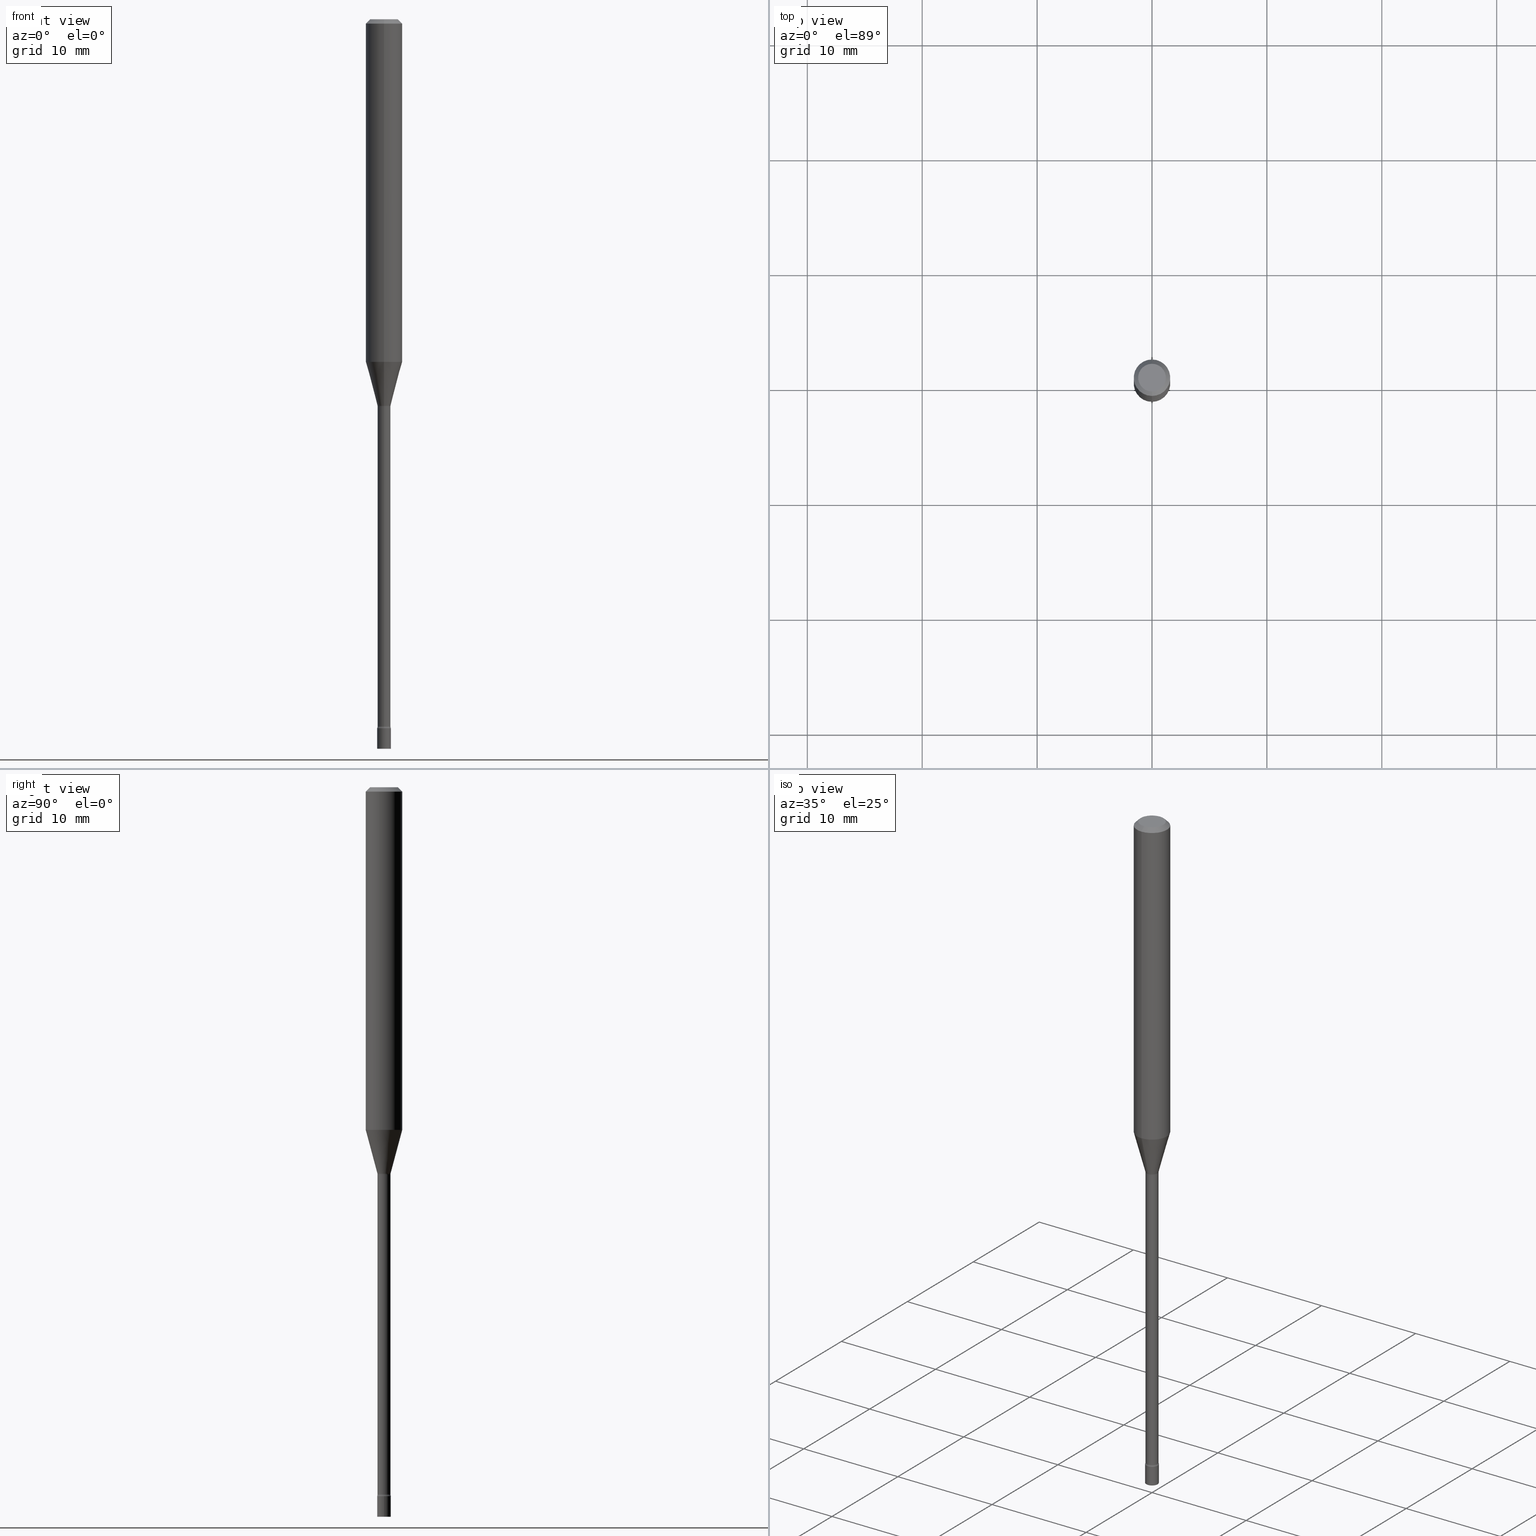
[diagram: canonical four-view strip — front | top / right | iso, engineering-drawing reading convention]
A machine part, canonical four-view strip (front | top / right | iso — engineering-drawing reading convention). The complete STEP part file that produces these views, byte-faithful:
ISO-10303-21;
HEADER;
FILE_DESCRIPTION (( 'STEP AP203' ),
    '1' );
FILE_NAME ('03679.STEP',
    '2024-03-08T22:33:36',
    ( '' ),
    ( '' ),
    'SwSTEP 2.0',
    'SolidWorks 2023',
    '' );
FILE_SCHEMA (( 'CONFIG_CONTROL_DESIGN' ));
ENDSEC;

DATA;
#1 = DIRECTION ( 'NONE',  ( -2.445482045406543342E-29, 3.491462379524561524E-15, 1.000000000000000000 ) ) ;
#2 = AXIS2_PLACEMENT_3D ( 'NONE', #155, #34, #341 ) ;
#3 = ORIENTED_EDGE ( 'NONE', *, *, #469, .F. ) ;
#4 = DIRECTION ( 'NONE',  ( -1.000000000000000000, 6.982962677686265922E-15, -4.883557194083112340E-29 ) ) ;
#5 = ORIENTED_EDGE ( 'NONE', *, *, #184, .T. ) ;
#6 = DIRECTION ( 'NONE',  ( -2.445482045406543342E-29, 3.491462379524561524E-15, 1.000000000000000000 ) ) ;
#7 = ORIENTED_EDGE ( 'NONE', *, *, #491, .T. ) ;
#8 = CARTESIAN_POINT ( 'NONE',  ( 5.924601570450546982E-29, -8.458669134682363583E-15, -2.422672283192177645 ) ) ;
#9 = CARTESIAN_POINT ( 'NONE',  ( 5.940043730223697314E-29, -8.480808172050001970E-15, -2.429000000000000270 ) ) ;
#10 = DIRECTION ( 'NONE',  ( -6.982962677686266711E-15, -1.000000000000000000, 0.000000000000000000 ) ) ;
#11 = EDGE_CURVE ( 'NONE', #156, #80, #402, .T. ) ;
#12 = DIRECTION ( 'NONE',  ( -2.445468806185136597E-29, 3.491481338843145583E-15, 1.000000000000000000 ) ) ;
#13 = ORIENTED_EDGE ( 'NONE', *, *, #387, .F. ) ;
#14 = ADVANCED_FACE ( 'NONE', ( #119 ), #288, .F. ) ;
#15 = COORDINATED_UNIVERSAL_TIME_OFFSET ( 5, 0, .BEHIND. ) ;
#16 = ADVANCED_FACE ( 'NONE', ( #42 ), #135, .F. ) ;
#17 = AXIS2_PLACEMENT_3D ( 'NONE', #312, #116, #88 ) ;
#18 = CIRCLE ( 'NONE', #136, 0.06250000000000000000 ) ;
#19 = COORDINATED_UNIVERSAL_TIME_OFFSET ( 5, 0, .BEHIND. ) ;
#20 = DIRECTION ( 'NONE',  ( 1.839019923739597554E-15, 0.2588190451025245697, 0.9659258262890670910 ) ) ;
#21 = EDGE_CURVE ( 'NONE', #337, #266, #84, .T. ) ;
#22 = DATE_AND_TIME ( #414, #408 ) ;
#23 = DIRECTION ( 'NONE',  ( -6.982962677686265922E-15, -1.000000000000000000, 3.491462379524561524E-15 ) ) ;
#24 = PERSON_AND_ORGANIZATION ( #278, #36 ) ;
#25 = PLANE ( 'NONE',  #261 ) ;
#26 = VERTEX_POINT ( 'NONE', #280 ) ;
#27 = AXIS2_PLACEMENT_3D ( 'NONE', #399, #394, #199 ) ;
#28 = AXIS2_PLACEMENT_3D ( 'NONE', #386, #432, #388 ) ;
#29 = ORIENTED_EDGE ( 'NONE', *, *, #207, .F. ) ;
#30 = CARTESIAN_POINT ( 'NONE',  ( -4.364351673553916201E-16, -0.06250000000000000000, 2.182163987202850953E-16 ) ) ;
#31 = ORIENTED_EDGE ( 'NONE', *, *, #217, .F. ) ;
#32 = DIRECTION ( 'NONE',  ( -1.000000000000000000, 6.982962677686265922E-15, -4.883557194083112340E-29 ) ) ;
#33 = ORIENTED_EDGE ( 'NONE', *, *, #451, .F. ) ;
#34 = DIRECTION ( 'NONE',  ( 2.445482045406543342E-29, -3.491462379524561524E-15, -1.000000000000000000 ) ) ;
#35 = DIRECTION ( 'NONE',  ( 6.982962677686265922E-15, 1.000000000000000000, -3.491462379524561524E-15 ) ) ;
#36 = ORGANIZATION ( 'UNSPECIFIED', 'UNSPECIFIED', '' ) ;
#37 = ORIENTED_EDGE ( 'NONE', *, *, #241, .F. ) ;
#38 = ORIENTED_EDGE ( 'NONE', *, *, #201, .T. ) ;
#39 = DIRECTION ( 'NONE',  ( 2.445482045406543061E-29, -3.491462379524561524E-15, -1.000000000000000000 ) ) ;
#40 = DIRECTION ( 'NONE',  ( -2.445468806185136597E-29, 3.491481338843145583E-15, 1.000000000000000000 ) ) ;
#41 = CARTESIAN_POINT ( 'NONE',  ( 0.02350000000000000352, -8.892802970033491011E-15, -2.500000000000000000 ) ) ;
#42 = FACE_OUTER_BOUND ( 'NONE', #50, .T. ) ;
#43 = CARTESIAN_POINT ( 'NONE',  ( 2.871546515168501925E-29, -4.099762927148765252E-15, -1.174225147374217793 ) ) ;
#44 = CIRCLE ( 'NONE', #327, 0.01500000000000003240 ) ;
#45 = DIRECTION ( 'NONE',  ( -2.445482045406543342E-29, 3.491462379524561524E-15, 1.000000000000000000 ) ) ;
#46 = FACE_OUTER_BOUND ( 'NONE', #472, .T. ) ;
#47 = EDGE_CURVE ( 'NONE', #72, #350, #423, .T. ) ;
#48 = DIRECTION ( 'NONE',  ( -6.982962677686265922E-15, -1.000000000000000000, 0.000000000000000000 ) ) ;
#49 = CARTESIAN_POINT ( 'NONE',  ( 7.071065235856426937E-46, -1.009549765475887125E-31, -2.891481149550176045E-17 ) ) ;
#50 = EDGE_LOOP ( 'NONE', ( #210, #484, #426, #269 ) ) ;
#51 = DIRECTION ( 'NONE',  ( 1.000000000000000000, 0.000000000000000000, 0.000000000000000000 ) ) ;
#52 = AXIS2_PLACEMENT_3D ( 'NONE', #43, #168, #317 ) ;
#53 = DIRECTION ( 'NONE',  ( 4.937700262164548042E-15, 0.7071067811865451302, -0.7071067811865499042 ) ) ;
#54 = COORDINATED_UNIVERSAL_TIME_OFFSET ( 5, 0, .BEHIND. ) ;
#55 = CARTESIAN_POINT ( 'NONE',  ( 0.000000000000000000, 0.000000000000000000, 0.000000000000000000 ) ) ;
#56 = AXIS2_PLACEMENT_3D ( 'NONE', #115, #71, #304 ) ;
#57 = CC_DESIGN_APPROVAL ( #398, ( #159 ) ) ;
#58 = SHAPE_DEFINITION_REPRESENTATION ( #404, #342 ) ;
#59 = CARTESIAN_POINT ( 'NONE',  ( 3.840629472727447874E-16, 0.04749999999999999362, -1.947592745229184119E-16 ) ) ;
#60 = APPROVAL_DATE_TIME ( #328, #488 ) ;
#61 = FACE_OUTER_BOUND ( 'NONE', #86, .T. ) ;
#62 = EDGE_CURVE ( 'NONE', #520, #396, #345, .T. ) ;
#63 = ORIENTED_EDGE ( 'NONE', *, *, #47, .F. ) ;
#64 = CARTESIAN_POINT ( 'NONE',  ( 1.606616180941141096E-16, 0.02261111260565936906, -1.323092501787273223 ) ) ;
#65 = AXIS2_PLACEMENT_3D ( 'NONE', #355, #362, #48 ) ;
#66 = AXIS2_PLACEMENT_3D ( 'NONE', #8, #163, #10 ) ;
#67 = APPROVAL ( #377, 'UNSPECIFIED' ) ;
#68 = ORIENTED_EDGE ( 'NONE', *, *, #201, .F. ) ;
#69 = LINE ( 'NONE', #30, #203 ) ;
#70 = EDGE_LOOP ( 'NONE', ( #516, #133, #470, #124 ) ) ;
#71 = DIRECTION ( 'NONE',  ( 1.000000000000000000, -7.105427357601001070E-15, 4.926315276357394490E-29 ) ) ;
#72 = VERTEX_POINT ( 'NONE', #166 ) ;
#73 = DIRECTION ( 'NONE',  ( 6.982962677686265922E-15, 1.000000000000000000, -3.483106191921935554E-15 ) ) ;
#74 = CC_DESIGN_PERSON_AND_ORGANIZATION_ASSIGNMENT ( #24, #139, ( #232 ) ) ;
#75 = VERTEX_POINT ( 'NONE', #319 ) ;
#76 = CONICAL_SURFACE ( 'NONE', #252, 0.06250000000000000000, 0.7853981633974483900 ) ;
#77 = CARTESIAN_POINT ( 'NONE',  ( 3.235598957532801493E-29, -4.619527694621298613E-15, -1.323092501787273223 ) ) ;
#78 = ORIENTED_EDGE ( 'NONE', *, *, #448, .F. ) ;
#79 = CARTESIAN_POINT ( 'NONE',  ( 0.000000000000000000, 0.000000000000000000, 0.000000000000000000 ) ) ;
#80 = VERTEX_POINT ( 'NONE', #435 ) ;
#81 = DIRECTION ( 'NONE',  ( -6.982962677686265922E-15, -1.000000000000000000, 0.000000000000000000 ) ) ;
#82 = CARTESIAN_POINT ( 'NONE',  ( 2.871546515168501925E-29, -4.099762927148765252E-15, -1.174225147374217793 ) ) ;
#83 = DIRECTION ( 'NONE',  ( -6.982962677686265922E-15, -1.000000000000000000, 3.491462379524561524E-15 ) ) ;
#84 = CIRCLE ( 'NONE', #209, 0.06250000000000000000 ) ;
#85 = AXIS2_PLACEMENT_3D ( 'NONE', #438, #395, #349 ) ;
#86 = EDGE_LOOP ( 'NONE', ( #78, #63 ) ) ;
#87 = CYLINDRICAL_SURFACE ( 'NONE', #400, 0.02210000000000005710 ) ;
#88 = DIRECTION ( 'NONE',  ( -6.982962677686265922E-15, -1.000000000000000000, 3.491462379524561524E-15 ) ) ;
#89 = CARTESIAN_POINT ( 'NONE',  ( 0.02350000000000000352, -8.644907794975628038E-15, -2.429000000000000270 ) ) ;
#90 = AXIS2_PLACEMENT_3D ( 'NONE', #457, #417, #479 ) ;
#91 = CC_DESIGN_APPROVAL ( #488, ( #232 ) ) ;
#92 = ORIENTED_EDGE ( 'NONE', *, *, #138, .T. ) ;
#93 =( LENGTH_UNIT ( ) NAMED_UNIT ( * ) SI_UNIT ( $, .METRE. ) );
#94 = DIRECTION ( 'NONE',  ( -6.982962677686265922E-15, -1.000000000000000000, 3.491462379524561524E-15 ) ) ;
#95 = CALENDAR_DATE ( 2024, 8, 3 ) ;
#96 = DIRECTION ( 'NONE',  ( -2.445482045406543342E-29, 3.491462379524561524E-15, 1.000000000000000000 ) ) ;
#97 = CIRCLE ( 'NONE', #333, 0.02350000000000000352 ) ;
#98 = AXIS2_PLACEMENT_3D ( 'NONE', #112, #39, #35 ) ;
#99 = ORIENTED_EDGE ( 'NONE', *, *, #21, .F. ) ;
#100 = DATE_AND_TIME ( #504, #372 ) ;
#101 = DIRECTION ( 'NONE',  ( -2.445482045406543061E-29, 3.491462379524561524E-15, 1.000000000000000000 ) ) ;
#102 = ADVANCED_FACE ( 'NONE', ( #162 ), #234, .T. ) ;
#103 = DIRECTION ( 'NONE',  ( -2.445482045406543342E-29, 3.491462379524561524E-15, 1.000000000000000000 ) ) ;
#104 = EDGE_LOOP ( 'NONE', ( #462, #229, #514, #117 ) ) ;
#105 = EDGE_LOOP ( 'NONE', ( #478, #430, #466, #444 ) ) ;
#106 = LINE ( 'NONE', #214, #230 ) ;
#107 = VECTOR ( 'NONE', #249, 39.37007874015748143 ) ;
#108 = AXIS2_PLACEMENT_3D ( 'NONE', #77, #471, #511 ) ;
#109 = EDGE_LOOP ( 'NONE', ( #482, #259, #299, #153 ) ) ;
#110 = CARTESIAN_POINT ( 'NONE',  ( -1.640996229255679887E-16, -0.02350000000000849673, -2.429000000000000270 ) ) ;
#111 = ORIENTED_EDGE ( 'NONE', *, *, #138, .F. ) ;
#112 = CARTESIAN_POINT ( 'NONE',  ( 3.316907271900976096E-16, 0.04749999999999999362, -1.803018687751675471E-16 ) ) ;
#113 = EDGE_CURVE ( 'NONE', #148, #431, #305, .T. ) ;
#114 = VERTEX_POINT ( 'NONE', #359 ) ;
#115 = CARTESIAN_POINT ( 'NONE',  ( 2.636113549670573269E-16, 0.03709999999999167436, -2.422672283192177645 ) ) ;
#116 = DIRECTION ( 'NONE',  ( -2.445482045406543342E-29, 3.491462379524561524E-15, 1.000000000000000000 ) ) ;
#117 = ORIENTED_EDGE ( 'NONE', *, *, #519, .F. ) ;
#118 = CARTESIAN_POINT ( 'NONE',  ( 3.235598957532801493E-29, -4.619527694621298613E-15, -1.323092501787273223 ) ) ;
#119 = FACE_OUTER_BOUND ( 'NONE', #104, .T. ) ;
#120 = FACE_OUTER_BOUND ( 'NONE', #208, .T. ) ;
#121 = DIRECTION ( 'NONE',  ( -6.982962677686266711E-15, -1.000000000000000000, 0.000000000000000000 ) ) ;
#122 = EDGE_CURVE ( 'NONE', #507, #156, #476, .T. ) ;
#123 =( CONVERSION_BASED_UNIT ( 'INCH', #245 ) LENGTH_UNIT ( ) NAMED_UNIT ( #450 ) );
#124 = ORIENTED_EDGE ( 'NONE', *, *, #258, .F. ) ;
#125 = LINE ( 'NONE', #403, #336 ) ;
#126 = ADVANCED_FACE ( 'NONE', ( #164 ), #320, .F. ) ;
#127 = AXIS2_PLACEMENT_3D ( 'NONE', #276, #316, #439 ) ;
#128 = AXIS2_PLACEMENT_3D ( 'NONE', #118, #160, #81 ) ;
#129 = EDGE_LOOP ( 'NONE', ( #272, #225 ) ) ;
#130 = DIRECTION ( 'NONE',  ( -6.982962677686266711E-15, -1.000000000000000000, 3.491462379524561524E-15 ) ) ;
#131 = DIRECTION ( 'NONE',  ( -2.445468806185136597E-29, 3.491481338843145583E-15, 1.000000000000000000 ) ) ;
#132 = PERSON_AND_ORGANIZATION ( #278, #36 ) ;
#133 = ORIENTED_EDGE ( 'NONE', *, *, #429, .T. ) ;
#134 = CARTESIAN_POINT ( 'NONE',  ( 3.023754139721028336E-16, 0.02261111260565936906, -1.323092501787273223 ) ) ;
#135 = TOROIDAL_SURFACE ( 'NONE', #458, 0.03710000000000000103, 0.01500000000000002373 ) ;
#136 = AXIS2_PLACEMENT_3D ( 'NONE', #243, #361, #481 ) ;
#137 = DATE_AND_TIME ( #176, #172 ) ;
#138 = EDGE_CURVE ( 'NONE', #493, #337, #257, .T. ) ;
#139 = PERSON_AND_ORGANIZATION_ROLE ( 'creator' ) ;
#140 = ORIENTED_EDGE ( 'NONE', *, *, #440, .F. ) ;
#141 = DIRECTION ( 'NONE',  ( -2.445482045406543342E-29, 3.491462379524561524E-15, 1.000000000000000000 ) ) ;
#142 = CYLINDRICAL_SURFACE ( 'NONE', #150, 0.06250000000000000000 ) ;
#143 = CIRCLE ( 'NONE', #505, 0.02350000000000000352 ) ;
#144 = FACE_OUTER_BOUND ( 'NONE', #254, .T. ) ;
#145 = ADVANCED_FACE ( 'NONE', ( #329 ), #378, .T. ) ;
#146 = FACE_OUTER_BOUND ( 'NONE', #463, .T. ) ;
#147 = ORIENTED_EDGE ( 'NONE', *, *, #519, .T. ) ;
#148 = VERTEX_POINT ( 'NONE', #59 ) ;
#149 = FACE_OUTER_BOUND ( 'NONE', #310, .T. ) ;
#150 = AXIS2_PLACEMENT_3D ( 'NONE', #222, #96, #219 ) ;
#151 = EDGE_CURVE ( 'NONE', #75, #80, #193, .T. ) ;
#152 = CC_DESIGN_APPROVAL ( #67, ( #251 ) ) ;
#153 = ORIENTED_EDGE ( 'NONE', *, *, #184, .F. ) ;
#154 = CARTESIAN_POINT ( 'NONE',  ( -3.773273898774340269E-16, -0.04749999999999999362, 1.369296515319149033E-16 ) ) ;
#155 = CARTESIAN_POINT ( 'NONE',  ( 3.668223068109822037E-31, -5.237193569286852393E-17, -0.01500000000000003067 ) ) ;
#156 = VERTEX_POINT ( 'NONE', #494 ) ;
#157 = PLANE ( 'NONE',  #98 ) ;
#158 = DIRECTION ( 'NONE',  ( -2.445482045406543342E-29, 3.491462379524561524E-15, 1.000000000000000000 ) ) ;
#159 = SECURITY_CLASSIFICATION ( '', '', #183 ) ;
#160 = DIRECTION ( 'NONE',  ( -2.445482045406543342E-29, 3.491462379524561524E-15, 1.000000000000000000 ) ) ;
#161 = CC_DESIGN_PERSON_AND_ORGANIZATION_ASSIGNMENT ( #411, #419, ( #251 ) ) ;
#162 = FACE_OUTER_BOUND ( 'NONE', #383, .T. ) ;
#163 = DIRECTION ( 'NONE',  ( -2.445482045406543342E-29, 3.491462379524561524E-15, 1.000000000000000000 ) ) ;
#164 = FACE_OUTER_BOUND ( 'NONE', #70, .T. ) ;
#165 = DIRECTION ( 'NONE',  ( 0.000000000000000000, 0.000000000000000000, 1.000000000000000000 ) ) ;
#166 = CARTESIAN_POINT ( 'NONE',  ( 1.669775429036830291E-16, 0.02349999999999153460, -2.429000000000000270 ) ) ;
#167 = ADVANCED_FACE ( 'NONE', ( #61 ), #25, .F. ) ;
#168 = DIRECTION ( 'NONE',  ( -2.445482045406543342E-29, 3.491462379524561524E-15, 1.000000000000000000 ) ) ;
#169 = AXIS2_PLACEMENT_3D ( 'NONE', #301, #331, #94 ) ;
#170 = AXIS2_PLACEMENT_3D ( 'NONE', #267, #344, #354 ) ;
#171 = CIRCLE ( 'NONE', #85, 0.02210000000000000506 ) ;
#172 = LOCAL_TIME ( 17, 33, 36.00000000000000000, #15 ) ;
#173 = EDGE_LOOP ( 'NONE', ( #111, #218, #442, #99 ) ) ;
#174 = CARTESIAN_POINT ( 'NONE',  ( -2.590679153421021709E-16, -0.03710000000000859832, -2.422672283192177645 ) ) ;
#175 = DIRECTION ( 'NONE',  ( 1.000000000000000000, -6.982962677686269866E-15, 0.000000000000000000 ) ) ;
#176 = CALENDAR_DATE ( 2024, 8, 3 ) ;
#177 = LOCAL_TIME ( 17, 33, 36.00000000000000000, #19 ) ;
#178 = DATE_AND_TIME ( #220, #177 ) ;
#179 = ORIENTED_EDGE ( 'NONE', *, *, #418, .T. ) ;
#180 = LINE ( 'NONE', #295, #370 ) ;
#181 = COORDINATED_UNIVERSAL_TIME_OFFSET ( 5, 0, .BEHIND. ) ;
#182 = APPLICATION_CONTEXT ( 'configuration controlled 3d designs of mechanical parts and assemblies' ) ;
#183 = SECURITY_CLASSIFICATION_LEVEL ( 'unclassified' ) ;
#184 = EDGE_CURVE ( 'NONE', #266, #114, #69, .T. ) ;
#185 = DIRECTION ( 'NONE',  ( -2.445468806185136877E-29, 3.491481338843145188E-15, 1.000000000000000000 ) ) ;
#186 = VECTOR ( 'NONE', #103, 39.37007874015748143 ) ;
#187 = VECTOR ( 'NONE', #473, 39.37007874015748143 ) ;
#188 = DIRECTION ( 'NONE',  ( 1.000000000000000000, -6.982962677686228056E-15, 0.000000000000000000 ) ) ;
#189 = CARTESIAN_POINT ( 'NONE',  ( -1.578925554262807327E-16, -0.02261111260566860820, -1.323092501787273223 ) ) ;
#190 = PLANE ( 'NONE',  #170 ) ;
#191 = ORIENTED_EDGE ( 'NONE', *, *, #231, .T. ) ;
#192 = CC_DESIGN_DATE_AND_TIME_ASSIGNMENT ( #100, #496, ( #159 ) ) ;
#193 = CIRCLE ( 'NONE', #273, 0.02210000000000000506 ) ;
#194 = CONICAL_SURFACE ( 'NONE', #382, 0.02261111260566398690, 0.2617993877991499074 ) ;
#195 = ORIENTED_EDGE ( 'NONE', *, *, #21, .T. ) ;
#196 = DIRECTION ( 'NONE',  ( -2.445482045406543342E-29, 3.491462379524561524E-15, 1.000000000000000000 ) ) ;
#197 = EDGE_CURVE ( 'NONE', #385, #266, #413, .T. ) ;
#198 = CARTESIAN_POINT ( 'NONE',  ( 3.235598957532801493E-29, -4.619527694621298613E-15, -1.323092501787273223 ) ) ;
#199 = DIRECTION ( 'NONE',  ( -1.000000000000000000, 6.982962677686265922E-15, -4.876176775795935793E-29 ) ) ;
#200 = FACE_OUTER_BOUND ( 'NONE', #105, .T. ) ;
#201 = EDGE_CURVE ( 'NONE', #405, #396, #180, .T. ) ;
#202 = DIRECTION ( 'NONE',  ( -6.982962677686265922E-15, -1.000000000000000000, 4.370956789862821150E-15 ) ) ;
#203 = VECTOR ( 'NONE', #499, 39.37007874015748143 ) ;
#204 = DIRECTION ( 'NONE',  ( -6.982962677686265133E-15, -1.000000000000000000, 0.000000000000000000 ) ) ;
#205 = ORIENTED_EDGE ( 'NONE', *, *, #465, .F. ) ;
#206 = CARTESIAN_POINT ( 'NONE',  ( -1.543234751768668812E-16, -0.02210000000000005710, 7.716131858749301636E-17 ) ) ;
#207 = EDGE_CURVE ( 'NONE', #337, #26, #334, .T. ) ;
#208 = EDGE_LOOP ( 'NONE', ( #517, #244 ) ) ;
#209 = AXIS2_PLACEMENT_3D ( 'NONE', #82, #242, #202 ) ;
#210 = ORIENTED_EDGE ( 'NONE', *, *, #429, .F. ) ;
#211 = PERSON_AND_ORGANIZATION ( #278, #36 ) ;
#212 = PERSON_AND_ORGANIZATION ( #278, #36 ) ;
#213 = PERSON_AND_ORGANIZATION ( #278, #36 ) ;
#214 = CARTESIAN_POINT ( 'NONE',  ( 1.570299446029825221E-16, 0.02210000000000005710, -7.716131858749301636E-17 ) ) ;
#215 = VECTOR ( 'NONE', #20, 39.37007874015748854 ) ;
#216 = LOCAL_TIME ( 17, 33, 36.00000000000000000, #181 ) ;
#217 = EDGE_CURVE ( 'NONE', #368, #520, #486, .T. ) ;
#218 = ORIENTED_EDGE ( 'NONE', *, *, #401, .T. ) ;
#219 = DIRECTION ( 'NONE',  ( -6.982962677686265922E-15, -1.000000000000000000, 3.491462379524561524E-15 ) ) ;
#220 = CALENDAR_DATE ( 2024, 8, 3 ) ;
#221 = CARTESIAN_POINT ( 'NONE',  ( 3.245075449336902148E-29, -4.633107707545245986E-15, -1.326974787463811145 ) ) ;
#222 = CARTESIAN_POINT ( 'NONE',  ( 0.000000000000000000, 0.000000000000000000, 0.000000000000000000 ) ) ;
#223 = AXIS2_PLACEMENT_3D ( 'NONE', #221, #508, #460 ) ;
#224 = DIRECTION ( 'NONE',  ( 1.000000000000000000, -6.982962677686265922E-15, 4.876176775795935793E-29 ) ) ;
#225 = ORIENTED_EDGE ( 'NONE', *, *, #465, .T. ) ;
#226 = FACE_OUTER_BOUND ( 'NONE', #129, .T. ) ;
#227 = ADVANCED_FACE ( 'NONE', ( #454 ), #142, .T. ) ;
#228 = CARTESIAN_POINT ( 'NONE',  ( 0.000000000000000000, 0.000000000000000000, 0.000000000000000000 ) ) ;
#229 = ORIENTED_EDGE ( 'NONE', *, *, #387, .T. ) ;
#230 = VECTOR ( 'NONE', #141, 39.37007874015748143 ) ;
#231 = EDGE_CURVE ( 'NONE', #405, #368, #97, .T. ) ;
#232 = PRODUCT_DEFINITION_FORMATION_WITH_SPECIFIED_SOURCE ( 'ANY', '', #433, .NOT_KNOWN. ) ;
#233 = DIRECTION ( 'NONE',  ( -6.982962677686265922E-15, -1.000000000000000000, 3.491462379524561919E-15 ) ) ;
#234 = PLANE ( 'NONE',  #27 ) ;
#235 = ADVANCED_FACE ( 'NONE', ( #144 ), #389, .F. ) ;
#236 = DIRECTION ( 'NONE',  ( 2.445482045406543342E-29, -3.491462379524561524E-15, -1.000000000000000000 ) ) ;
#237 = CARTESIAN_POINT ( 'NONE',  ( 5.924601570450546982E-29, -8.458669134682363583E-15, -2.422672283192177645 ) ) ;
#238 = FACE_OUTER_BOUND ( 'NONE', #173, .T. ) ;
#239 = DIRECTION ( 'NONE',  ( 1.000000000000000000, -6.982962677686269866E-15, 0.000000000000000000 ) ) ;
#240 = AXIS2_PLACEMENT_3D ( 'NONE', #367, #12, #175 ) ;
#241 = EDGE_CURVE ( 'NONE', #507, #75, #106, .T. ) ;
#242 = DIRECTION ( 'NONE',  ( -2.445482045406543342E-29, 3.491462379524561524E-15, 1.000000000000000000 ) ) ;
#243 = CARTESIAN_POINT ( 'NONE',  ( 3.668223068109822037E-31, -5.237193569286852393E-17, -0.01500000000000003067 ) ) ;
#244 = ORIENTED_EDGE ( 'NONE', *, *, #451, .T. ) ;
#245 = LENGTH_MEASURE_WITH_UNIT ( LENGTH_MEASURE( 0.02539999999999999897 ), #93 );
#246 = AXIS2_PLACEMENT_3D ( 'NONE', #376, #32, #371 ) ;
#247 = ADVANCED_FACE ( 'NONE', ( #146 ), #464, .T. ) ;
#248 = ORIENTED_EDGE ( 'NONE', *, *, #62, .F. ) ;
#249 = DIRECTION ( 'NONE',  ( -2.445468806185136877E-29, 3.491481338843145188E-15, 1.000000000000000000 ) ) ;
#250 = PERSON_AND_ORGANIZATION_ROLE ( 'design_supplier' ) ;
#251 = PRODUCT_DEFINITION ( 'UNKNOWN', '', #232, #501 ) ;
#252 = AXIS2_PLACEMENT_3D ( 'NONE', #441, #236, #73 ) ;
#253 = UNCERTAINTY_MEASURE_WITH_UNIT (LENGTH_MEASURE( 1.000000000000000082E-05 ), #123, 'distance_accuracy_value', 'NONE');
#254 = EDGE_LOOP ( 'NONE', ( #13, #140, #147, #380 ) ) ;
#255 = APPROVAL_ROLE ( '' ) ;
#256 = DIRECTION ( 'NONE',  ( -6.982962677686265922E-15, -1.000000000000000000, 0.000000000000000000 ) ) ;
#257 = LINE ( 'NONE', #64, #215 ) ;
#258 = EDGE_CURVE ( 'NONE', #385, #80, #407, .T. ) ;
#259 = ORIENTED_EDGE ( 'NONE', *, *, #207, .T. ) ;
#260 = DIRECTION ( 'NONE',  ( -2.445468806185136597E-29, 3.491481338843145583E-15, 1.000000000000000000 ) ) ;
#261 = AXIS2_PLACEMENT_3D ( 'NONE', #338, #101, #23 ) ;
#262 = CIRCLE ( 'NONE', #28, 0.02261111260566398690 ) ;
#263 = CC_DESIGN_PERSON_AND_ORGANIZATION_ASSIGNMENT ( #490, #330, ( #159 ) ) ;
#264 = ORIENTED_EDGE ( 'NONE', *, *, #122, .T. ) ;
#265 = CARTESIAN_POINT ( 'NONE',  ( -4.287811248607203282E-16, -0.06250000000000005551, -0.01499999999999981209 ) ) ;
#266 = VERTEX_POINT ( 'NONE', #293 ) ;
#267 = CARTESIAN_POINT ( 'NONE',  ( 5.940043730223697314E-29, -8.480808172050001970E-15, -2.429000000000000270 ) ) ;
#268 = ORIENTED_EDGE ( 'NONE', *, *, #298, .T. ) ;
#269 = ORIENTED_EDGE ( 'NONE', *, *, #335, .T. ) ;
#270 = CARTESIAN_POINT ( 'NONE',  ( -0.02350000000000000352, -8.437778216675308581E-15, -2.429000000000000270 ) ) ;
#271 = CC_DESIGN_DATE_AND_TIME_ASSIGNMENT ( #22, #332, ( #251 ) ) ;
#272 = ORIENTED_EDGE ( 'NONE', *, *, #62, .T. ) ;
#273 = AXIS2_PLACEMENT_3D ( 'NONE', #424, #421, #256 ) ;
#274 = CIRCLE ( 'NONE', #52, 0.06250000000000000000 ) ;
#275 = DIRECTION ( 'NONE',  ( 1.000000000000000000, -7.105427357601001070E-15, 4.926315276357394490E-29 ) ) ;
#276 = CARTESIAN_POINT ( 'NONE',  ( 7.071065235856426937E-46, -1.009549765475887125E-31, -2.891481149550176045E-17 ) ) ;
#277 = FACE_OUTER_BOUND ( 'NONE', #456, .T. ) ;
#278 = PERSON ( 'UNSPECIFIED', 'UNSPECIFIED', 'UNSPECIFIED', ('UNSPECIFIED'), ('UNSPECIFIED'), ('UNSPECIFIED') ) ;
#279 = DIRECTION ( 'NONE',  ( -6.982962677686265922E-15, -1.000000000000000000, 3.491462379524561524E-15 ) ) ;
#280 = CARTESIAN_POINT ( 'NONE',  ( 4.440892098500914096E-16, 0.06249999999999995143, -0.01500000000000024751 ) ) ;
#281 = AXIS2_PLACEMENT_3D ( 'NONE', #49, #366, #130 ) ;
#282 = EDGE_CURVE ( 'NONE', #368, #405, #313, .T. ) ;
#283 = ORIENTED_EDGE ( 'NONE', *, *, #282, .T. ) ;
#284 =( NAMED_UNIT ( * ) SI_UNIT ( $, .STERADIAN. ) SOLID_ANGLE_UNIT ( ) );
#285 = ADVANCED_FACE ( 'NONE', ( #475 ), #477, .T. ) ;
#286 = PERSON_AND_ORGANIZATION_ROLE ( 'design_owner' ) ;
#287 = ADVANCED_FACE ( 'NONE', ( #149 ), #391, .T. ) ;
#288 = TOROIDAL_SURFACE ( 'NONE', #17, 0.03710000000000013287, 0.01500000000000002720 ) ;
#289 = AXIS2_PLACEMENT_3D ( 'NONE', #228, #308, #233 ) ;
#290 = APPROVAL_DATE_TIME ( #137, #398 ) ;
#291 = CARTESIAN_POINT ( 'NONE',  ( 0.000000000000000000, 0.000000000000000000, 0.000000000000000000 ) ) ;
#292 = APPROVAL_STATUS ( 'not_yet_approved' ) ;
#293 = CARTESIAN_POINT ( 'NONE',  ( -4.364351673553631225E-16, -0.06250000000000412170, -1.174225147374217570 ) ) ;
#294 = AXIS2_PLACEMENT_3D ( 'NONE', #291, #131, #224 ) ;
#295 = CARTESIAN_POINT ( 'NONE',  ( -0.02350000000000000352, 1.669775429036235687E-16, -1.155949746209903035E-30 ) ) ;
#296 = CIRCLE ( 'NONE', #416, 0.06250000000000000000 ) ;
#297 = DIRECTION ( 'NONE',  ( -1.807323732225327773E-15, -0.2588190451025178529, 0.9659258262890690894 ) ) ;
#298 = EDGE_CURVE ( 'NONE', #114, #26, #296, .T. ) ;
#299 = ORIENTED_EDGE ( 'NONE', *, *, #298, .F. ) ;
#300 = ORIENTED_EDGE ( 'NONE', *, *, #373, .F. ) ;
#301 = CARTESIAN_POINT ( 'NONE',  ( 5.924569496155794395E-29, -8.458715066898005273E-15, -2.422672283192177645 ) ) ;
#302 = CC_DESIGN_PERSON_AND_ORGANIZATION_ASSIGNMENT ( #132, #286, ( #433 ) ) ;
#303 = ORIENTED_EDGE ( 'NONE', *, *, #513, .F. ) ;
#304 = DIRECTION ( 'NONE',  ( 7.105427357600997914E-15, 1.000000000000000000, 0.000000000000000000 ) ) ;
#305 = CIRCLE ( 'NONE', #127, 0.04749999999999999362 ) ;
#306 = DIRECTION ( 'NONE',  ( -2.445482045406543342E-29, 3.491462379524561524E-15, 1.000000000000000000 ) ) ;
#307 = ORIENTED_EDGE ( 'NONE', *, *, #11, .T. ) ;
#308 = DIRECTION ( 'NONE',  ( -2.445482045406543342E-29, 3.491462379524561524E-15, 1.000000000000000000 ) ) ;
#309 = ADVANCED_FACE ( 'NONE', ( #120 ), #157, .F. ) ;
#310 = EDGE_LOOP ( 'NONE', ( #300, #340, #7, #360 ) ) ;
#311 = FACE_OUTER_BOUND ( 'NONE', #109, .T. ) ;
#312 = CARTESIAN_POINT ( 'NONE',  ( 5.924569496155794395E-29, -8.458715066898005273E-15, -2.422672283192177645 ) ) ;
#313 = CIRCLE ( 'NONE', #90, 0.02350000000000000352 ) ;
#314 = APPROVAL_PERSON_ORGANIZATION ( #410, #488, #374 ) ;
#315 = LINE ( 'NONE', #265, #187 ) ;
#316 = DIRECTION ( 'NONE',  ( -2.445482045406543342E-29, 3.491462379524561524E-15, 1.000000000000000000 ) ) ;
#317 = DIRECTION ( 'NONE',  ( -6.982962677686265922E-15, -1.000000000000000000, 4.370956789862821150E-15 ) ) ;
#318 = ORIENTED_EDGE ( 'NONE', *, *, #282, .F. ) ;
#319 = CARTESIAN_POINT ( 'NONE',  ( 1.570299446030417360E-16, 0.02209999999999536988, -1.326974787463811145 ) ) ;
#320 = TOROIDAL_SURFACE ( 'NONE', #223, 0.03710000000000000103, 0.01500000000000002373 ) ;
#321 = DIRECTION ( 'NONE',  ( -6.982962677686265922E-15, -1.000000000000000000, 3.491462379524561919E-15 ) ) ;
#322 = CARTESIAN_POINT ( 'NONE',  ( -1.578925554262807327E-16, -0.02261111260566860820, -1.323092501787273223 ) ) ;
#323 =( NAMED_UNIT ( * ) PLANE_ANGLE_UNIT ( ) SI_UNIT ( $, .RADIAN. ) );
#324 = DIRECTION ( 'NONE',  ( -6.982962677686265922E-15, -1.000000000000000000, 0.000000000000000000 ) ) ;
#325 = APPROVAL_DATE_TIME ( #178, #67 ) ;
#326 = VECTOR ( 'NONE', #297, 39.37007874015748143 ) ;
#327 = AXIS2_PLACEMENT_3D ( 'NONE', #174, #4, #204 ) ;
#328 = DATE_AND_TIME ( #95, #216 ) ;
#329 = FACE_OUTER_BOUND ( 'NONE', #343, .T. ) ;
#330 = PERSON_AND_ORGANIZATION_ROLE ( 'classification_officer' ) ;
#331 = DIRECTION ( 'NONE',  ( -2.445482045406543342E-29, 3.491462379524561524E-15, 1.000000000000000000 ) ) ;
#332 = DATE_TIME_ROLE ( 'creation_date' ) ;
#333 = AXIS2_PLACEMENT_3D ( 'NONE', #381, #506, #188 ) ;
#334 = LINE ( 'NONE', #461, #186 ) ;
#335 = EDGE_CURVE ( 'NONE', #80, #75, #171, .T. ) ;
#336 = VECTOR ( 'NONE', #53, 39.37007874015748143 ) ;
#337 = VERTEX_POINT ( 'NONE', #509 ) ;
#338 = CARTESIAN_POINT ( 'NONE',  ( 1.640996229256866630E-16, 0.02349999999999152073, -2.429000000000000270 ) ) ;
#339 = ADVANCED_FACE ( 'NONE', ( #238 ), #194, .T. ) ;
#340 = ORIENTED_EDGE ( 'NONE', *, *, #113, .F. ) ;
#341 = DIRECTION ( 'NONE',  ( 6.982962677686265922E-15, 1.000000000000000000, -3.483106191921935554E-15 ) ) ;
#342 = ADVANCED_BREP_SHAPE_REPRESENTATION ( '03679', ( #500, #495, #468 ), #425 ) ;
#343 = EDGE_LOOP ( 'NONE', ( #283, #38, #248, #31 ) ) ;
#344 = DIRECTION ( 'NONE',  ( -2.438088387897960049E-29, 3.491481338843145188E-15, 1.000000000000000000 ) ) ;
#345 = CIRCLE ( 'NONE', #356, 0.02350000000000000352 ) ;
#346 = CIRCLE ( 'NONE', #108, 0.02261111260566398690 ) ;
#347 = ADVANCED_FACE ( 'NONE', ( #200 ), #515, .T. ) ;
#348 = ORIENTED_EDGE ( 'NONE', *, *, #217, .T. ) ;
#349 = DIRECTION ( 'NONE',  ( -6.982962677686265922E-15, -1.000000000000000000, 0.000000000000000000 ) ) ;
#350 = VERTEX_POINT ( 'NONE', #110 ) ;
#351 = ORIENTED_EDGE ( 'NONE', *, *, #373, .T. ) ;
#352 = DIRECTION ( 'NONE',  ( -6.982962677686265922E-15, -1.000000000000000000, 0.000000000000000000 ) ) ;
#353 = CARTESIAN_POINT ( 'NONE',  ( 3.245075449336902148E-29, -4.633107707545245986E-15, -1.326974787463811145 ) ) ;
#354 = DIRECTION ( 'NONE',  ( 1.000000000000000000, -6.982962677686265922E-15, 4.876176775795935793E-29 ) ) ;
#355 = CARTESIAN_POINT ( 'NONE',  ( 5.940075888292493475E-29, -8.480762119865160587E-15, -2.429000000000000270 ) ) ;
#356 = AXIS2_PLACEMENT_3D ( 'NONE', #9, #40, #239 ) ;
#357 = CIRCLE ( 'NONE', #281, 0.04749999999999999362 ) ;
#358 = CARTESIAN_POINT ( 'NONE',  ( 1.620037437533626044E-16, 0.02209999999999164716, -2.422672283192177645 ) ) ;
#359 = CARTESIAN_POINT ( 'NONE',  ( -4.364351673553912750E-16, -0.06250000000000005551, -0.01499999999999981209 ) ) ;
#360 = ORIENTED_EDGE ( 'NONE', *, *, #513, .T. ) ;
#361 = DIRECTION ( 'NONE',  ( -2.445482045406543342E-29, 3.491462379524561524E-15, 1.000000000000000000 ) ) ;
#362 = DIRECTION ( 'NONE',  ( -2.445482045406543342E-29, 3.491462379524561524E-15, 1.000000000000000000 ) ) ;
#363 = AXIS2_PLACEMENT_3D ( 'NONE', #55, #260, #384 ) ;
#364 = AXIS2_PLACEMENT_3D ( 'NONE', #393, #275, #518 ) ;
#365 = CC_DESIGN_PERSON_AND_ORGANIZATION_ASSIGNMENT ( #213, #250, ( #232 ) ) ;
#366 = DIRECTION ( 'NONE',  ( -2.445482045406543342E-29, 3.491462379524561524E-15, 1.000000000000000000 ) ) ;
#367 = CARTESIAN_POINT ( 'NONE',  ( 5.940043730223697314E-29, -8.480808172050001970E-15, -2.429000000000000270 ) ) ;
#368 = VERTEX_POINT ( 'NONE', #41 ) ;
#369 = APPROVAL_STATUS ( 'not_yet_approved' ) ;
#370 = VECTOR ( 'NONE', #185, 39.37007874015748143 ) ;
#371 = DIRECTION ( 'NONE',  ( -6.982962677686266711E-15, -1.000000000000000000, 0.000000000000000000 ) ) ;
#372 = LOCAL_TIME ( 17, 33, 36.00000000000000000, #492 ) ;
#373 = EDGE_CURVE ( 'NONE', #431, #114, #315, .T. ) ;
#374 = APPROVAL_ROLE ( '' ) ;
#375 = EDGE_LOOP ( 'NONE', ( #29, #195, #5, #303 ) ) ;
#376 = CARTESIAN_POINT ( 'NONE',  ( -2.590679153421280554E-16, -0.03710000000000463621, -1.326974787463811145 ) ) ;
#377 = APPROVAL_STATUS ( 'not_yet_approved' ) ;
#378 = CYLINDRICAL_SURFACE ( 'NONE', #294, 0.02350000000000000352 ) ;
#379 = ADVANCED_FACE ( 'NONE', ( #277 ), #76, .T. ) ;
#380 = ORIENTED_EDGE ( 'NONE', *, *, #448, .T. ) ;
#381 = CARTESIAN_POINT ( 'NONE',  ( 6.113672015462842613E-29, -8.728703347107864943E-15, -2.500000000000000000 ) ) ;
#382 = AXIS2_PLACEMENT_3D ( 'NONE', #198, #196, #352 ) ;
#383 = EDGE_LOOP ( 'NONE', ( #318, #498 ) ) ;
#384 = DIRECTION ( 'NONE',  ( 1.000000000000000000, -6.982962677686265922E-15, 4.876176775795935793E-29 ) ) ;
#385 = VERTEX_POINT ( 'NONE', #189 ) ;
#386 = CARTESIAN_POINT ( 'NONE',  ( 3.235598957532801493E-29, -4.619527694621298613E-15, -1.323092501787273223 ) ) ;
#387 = EDGE_CURVE ( 'NONE', #507, #72, #512, .T. ) ;
#388 = DIRECTION ( 'NONE',  ( -6.982962677686265922E-15, -1.000000000000000000, 0.000000000000000000 ) ) ;
#389 = TOROIDAL_SURFACE ( 'NONE', #169, 0.03710000000000013287, 0.01500000000000002720 ) ;
#390 = CIRCLE ( 'NONE', #66, 0.02210000000000010914 ) ;
#391 = CONICAL_SURFACE ( 'NONE', #2, 0.06250000000000000000, 0.7853981633974483900 ) ;
#392 = APPROVAL_PERSON_ORGANIZATION ( #212, #398, #455 ) ;
#393 = CARTESIAN_POINT ( 'NONE',  ( 2.636113549670296182E-16, 0.03709999999999537279, -1.326974787463811145 ) ) ;
#394 = DIRECTION ( 'NONE',  ( 2.438088387897960049E-29, -3.491481338843145188E-15, -1.000000000000000000 ) ) ;
#395 = DIRECTION ( 'NONE',  ( -2.445482045406543342E-29, 3.491462379524561524E-15, 1.000000000000000000 ) ) ;
#396 = VERTEX_POINT ( 'NONE', #270 ) ;
#397 = DIRECTION ( 'NONE',  ( -6.982962677686265922E-15, -1.000000000000000000, 3.483106191921935554E-15 ) ) ;
#398 = APPROVAL ( #369, 'UNSPECIFIED' ) ;
#399 = CARTESIAN_POINT ( 'NONE',  ( 1.640996229256884133E-16, 0.02349999999999127440, -2.500000000000000000 ) ) ;
#400 = AXIS2_PLACEMENT_3D ( 'NONE', #487, #443, #321 ) ;
#401 = EDGE_CURVE ( 'NONE', #493, #385, #262, .T. ) ;
#402 = LINE ( 'NONE', #206, #445 ) ;
#403 = CARTESIAN_POINT ( 'NONE',  ( 4.364351673553919652E-16, 0.06249999999999995143, -0.01500000000000024751 ) ) ;
#404 = PRODUCT_DEFINITION_SHAPE ( 'NONE', 'NONE',  #251 ) ;
#405 = VERTEX_POINT ( 'NONE', #427 ) ;
#406 = CARTESIAN_POINT ( 'NONE',  ( 0.000000000000000000, 0.000000000000000000, 0.000000000000000000 ) ) ;
#407 = CIRCLE ( 'NONE', #246, 0.01500000000000002373 ) ;
#408 = LOCAL_TIME ( 17, 33, 36.00000000000000000, #54 ) ;
#409 = APPLICATION_PROTOCOL_DEFINITION ( 'international standard', 'config_control_design', 1994, #502 ) ;
#410 = PERSON_AND_ORGANIZATION ( #278, #36 ) ;
#411 = PERSON_AND_ORGANIZATION ( #278, #36 ) ;
#412 = ADVANCED_FACE ( 'NONE', ( #226 ), #190, .T. ) ;
#413 = LINE ( 'NONE', #322, #326 ) ;
#414 = CALENDAR_DATE ( 2024, 8, 3 ) ;
#415 = AXIS2_PLACEMENT_3D ( 'NONE', #237, #480, #121 ) ;
#416 = AXIS2_PLACEMENT_3D ( 'NONE', #467, #306, #397 ) ;
#417 = DIRECTION ( 'NONE',  ( -2.445468806185136597E-29, 3.491481338843145583E-15, 1.000000000000000000 ) ) ;
#418 = EDGE_CURVE ( 'NONE', #385, #493, #346, .T. ) ;
#419 = PERSON_AND_ORGANIZATION_ROLE ( 'creator' ) ;
#420 = CARTESIAN_POINT ( 'NONE',  ( 0.02350000000000000352, -1.640996229256272766E-16, 1.145901542312045115E-30 ) ) ;
#421 = DIRECTION ( 'NONE',  ( -2.445482045406543342E-29, 3.491462379524561524E-15, 1.000000000000000000 ) ) ;
#422 = ORIENTED_EDGE ( 'NONE', *, *, #197, .F. ) ;
#423 = CIRCLE ( 'NONE', #65, 0.02350000000000000352 ) ;
#424 = CARTESIAN_POINT ( 'NONE',  ( 3.245093017449914166E-29, -4.633082549007498078E-15, -1.326974787463811145 ) ) ;
#425 =( GEOMETRIC_REPRESENTATION_CONTEXT ( 3 ) GLOBAL_UNCERTAINTY_ASSIGNED_CONTEXT ( ( #253 ) ) GLOBAL_UNIT_ASSIGNED_CONTEXT ( ( #123, #323, #284 ) ) REPRESENTATION_CONTEXT ( 'NONE', 'WORKASPACE' ) );
#426 = ORIENTED_EDGE ( 'NONE', *, *, #258, .T. ) ;
#427 = CARTESIAN_POINT ( 'NONE',  ( -0.02350000000000000352, -8.437778216675308581E-15, -2.500000000000000000 ) ) ;
#428 = CYLINDRICAL_SURFACE ( 'NONE', #434, 0.06250000000000000000 ) ;
#429 = EDGE_CURVE ( 'NONE', #493, #75, #485, .T. ) ;
#430 = ORIENTED_EDGE ( 'NONE', *, *, #241, .T. ) ;
#431 = VERTEX_POINT ( 'NONE', #154 ) ;
#432 = DIRECTION ( 'NONE',  ( -2.445482045406543342E-29, 3.491462379524561524E-15, 1.000000000000000000 ) ) ;
#433 = PRODUCT ( '03679', '03679', '', ( #449 ) ) ;
#434 = AXIS2_PLACEMENT_3D ( 'NONE', #79, #1, #83 ) ;
#435 = CARTESIAN_POINT ( 'NONE',  ( -1.543234751768340696E-16, -0.02210000000000463677, -1.326974787463811145 ) ) ;
#436 = ADVANCED_FACE ( 'NONE', ( #311 ), #428, .T. ) ;
#437 = EDGE_LOOP ( 'NONE', ( #179, #92, #3, #422 ) ) ;
#438 = CARTESIAN_POINT ( 'NONE',  ( 3.245093017449914166E-29, -4.633082549007498078E-15, -1.326974787463811145 ) ) ;
#439 = DIRECTION ( 'NONE',  ( -6.982962677686266711E-15, -1.000000000000000000, 3.491462379524561524E-15 ) ) ;
#440 = EDGE_CURVE ( 'NONE', #156, #507, #390, .T. ) ;
#441 = CARTESIAN_POINT ( 'NONE',  ( 3.668223068109822037E-31, -5.237193569286852393E-17, -0.01500000000000003067 ) ) ;
#442 = ORIENTED_EDGE ( 'NONE', *, *, #197, .T. ) ;
#443 = DIRECTION ( 'NONE',  ( -2.445482045406543342E-29, 3.491462379524561524E-15, 1.000000000000000000 ) ) ;
#444 = ORIENTED_EDGE ( 'NONE', *, *, #11, .F. ) ;
#445 = VECTOR ( 'NONE', #158, 39.37007874015748143 ) ;
#446 = CIRCLE ( 'NONE', #240, 0.02350000000000000352 ) ;
#447 = CARTESIAN_POINT ( 'NONE',  ( 5.940075888292493475E-29, -8.480762119865160587E-15, -2.429000000000000270 ) ) ;
#448 = EDGE_CURVE ( 'NONE', #350, #72, #143, .T. ) ;
#449 = MECHANICAL_CONTEXT ( 'NONE', #182, 'mechanical' ) ;
#450 = DIMENSIONAL_EXPONENTS ( 1.000000000000000000, 0.000000000000000000, 0.000000000000000000, 0.000000000000000000, 0.000000000000000000, 0.000000000000000000, 0.000000000000000000 ) ;
#451 = EDGE_CURVE ( 'NONE', #431, #148, #357, .T. ) ;
#452 = CC_DESIGN_SECURITY_CLASSIFICATION ( #159, ( #232 ) ) ;
#453 = APPLICATION_PROTOCOL_DEFINITION ( 'international standard', 'config_control_design', 1994, #182 ) ;
#454 = FACE_OUTER_BOUND ( 'NONE', #375, .T. ) ;
#455 = APPROVAL_ROLE ( '' ) ;
#456 = EDGE_LOOP ( 'NONE', ( #33, #351, #268, #510 ) ) ;
#457 = CARTESIAN_POINT ( 'NONE',  ( 6.113672015462842613E-29, -8.728703347107864943E-15, -2.500000000000000000 ) ) ;
#458 = AXIS2_PLACEMENT_3D ( 'NONE', #353, #45, #279 ) ;
#459 = APPROVAL_PERSON_ORGANIZATION ( #211, #67, #255 ) ;
#460 = DIRECTION ( 'NONE',  ( -6.982962677686265922E-15, -1.000000000000000000, 3.491462379524561524E-15 ) ) ;
#461 = CARTESIAN_POINT ( 'NONE',  ( 4.440892098500625669E-16, 0.06250000000000000000, -2.182163987202850953E-16 ) ) ;
#462 = ORIENTED_EDGE ( 'NONE', *, *, #122, .F. ) ;
#463 = EDGE_LOOP ( 'NONE', ( #68, #191, #348, #205 ) ) ;
#464 = CYLINDRICAL_SURFACE ( 'NONE', #363, 0.02350000000000000352 ) ;
#465 = EDGE_CURVE ( 'NONE', #396, #520, #446, .T. ) ;
#466 = ORIENTED_EDGE ( 'NONE', *, *, #335, .F. ) ;
#467 = CARTESIAN_POINT ( 'NONE',  ( 3.668223068109822037E-31, -5.237193569286852393E-17, -0.01500000000000003067 ) ) ;
#468 = AXIS2_PLACEMENT_3D ( 'NONE', #406, #165, #51 ) ;
#469 = EDGE_CURVE ( 'NONE', #266, #337, #274, .T. ) ;
#470 = ORIENTED_EDGE ( 'NONE', *, *, #151, .T. ) ;
#471 = DIRECTION ( 'NONE',  ( -2.445482045406543342E-29, 3.491462379524561524E-15, 1.000000000000000000 ) ) ;
#472 = EDGE_LOOP ( 'NONE', ( #37, #264, #307, #474 ) ) ;
#473 = DIRECTION ( 'NONE',  ( -4.851104656540964275E-15, -0.7071067811865500152, -0.7071067811865450192 ) ) ;
#474 = ORIENTED_EDGE ( 'NONE', *, *, #151, .F. ) ;
#475 = FACE_OUTER_BOUND ( 'NONE', #437, .T. ) ;
#476 = CIRCLE ( 'NONE', #415, 0.02210000000000010914 ) ;
#477 = CONICAL_SURFACE ( 'NONE', #128, 0.02261111260566398690, 0.2617993877991499074 ) ;
#478 = ORIENTED_EDGE ( 'NONE', *, *, #440, .T. ) ;
#479 = DIRECTION ( 'NONE',  ( 1.000000000000000000, -6.982962677686228056E-15, 0.000000000000000000 ) ) ;
#480 = DIRECTION ( 'NONE',  ( -2.445482045406543342E-29, 3.491462379524561524E-15, 1.000000000000000000 ) ) ;
#481 = DIRECTION ( 'NONE',  ( -6.982962677686265922E-15, -1.000000000000000000, 3.483106191921935554E-15 ) ) ;
#482 = ORIENTED_EDGE ( 'NONE', *, *, #469, .T. ) ;
#483 = ADVANCED_FACE ( 'NONE', ( #46 ), #87, .T. ) ;
#484 = ORIENTED_EDGE ( 'NONE', *, *, #418, .F. ) ;
#485 = CIRCLE ( 'NONE', #364, 0.01500000000000002373 ) ;
#486 = LINE ( 'NONE', #420, #107 ) ;
#487 = CARTESIAN_POINT ( 'NONE',  ( 0.000000000000000000, 0.000000000000000000, 0.000000000000000000 ) ) ;
#488 = APPROVAL ( #292, 'UNSPECIFIED' ) ;
#489 = CLOSED_SHELL ( 'NONE', ( #145, #412, #247, #102 ) ) ;
#490 = PERSON_AND_ORGANIZATION ( #278, #36 ) ;
#491 = EDGE_CURVE ( 'NONE', #148, #26, #125, .T. ) ;
#492 = COORDINATED_UNIVERSAL_TIME_OFFSET ( 5, 0, .BEHIND. ) ;
#493 = VERTEX_POINT ( 'NONE', #134 ) ;
#494 = CARTESIAN_POINT ( 'NONE',  ( -1.543234751768080125E-16, -0.02210000000000856765, -2.422672283192177645 ) ) ;
#495 = MANIFOLD_SOLID_BREP ( 'Body-Move/Copy2[2]', #503 ) ;
#496 = DATE_TIME_ROLE ( 'classification_date' ) ;
#497 = PRODUCT_RELATED_PRODUCT_CATEGORY ( 'detail', '', ( #433 ) ) ;
#498 = ORIENTED_EDGE ( 'NONE', *, *, #231, .F. ) ;
#499 = DIRECTION ( 'NONE',  ( -2.445482045406543342E-29, 3.491462379524561524E-15, 1.000000000000000000 ) ) ;
#500 = MANIFOLD_SOLID_BREP ( 'Body-Move/Copy2[1]', #489 ) ;
#501 = DESIGN_CONTEXT ( 'detailed design', #502, 'design' ) ;
#502 = APPLICATION_CONTEXT ( 'configuration controlled 3d designs of mechanical parts and assemblies' ) ;
#503 = CLOSED_SHELL ( 'NONE', ( #126, #347, #14, #379, #436, #285, #339, #227, #287, #309, #167, #235, #483, #16 ) ) ;
#504 = CALENDAR_DATE ( 2024, 8, 3 ) ;
#505 = AXIS2_PLACEMENT_3D ( 'NONE', #447, #6, #324 ) ;
#506 = DIRECTION ( 'NONE',  ( -2.445468806185136597E-29, 3.491481338843145583E-15, 1.000000000000000000 ) ) ;
#507 = VERTEX_POINT ( 'NONE', #358 ) ;
#508 = DIRECTION ( 'NONE',  ( -2.445482045406543342E-29, 3.491462379524561524E-15, 1.000000000000000000 ) ) ;
#509 = CARTESIAN_POINT ( 'NONE',  ( 4.440892098500910152E-16, 0.06249999999999588524, -1.174225147374218237 ) ) ;
#510 = ORIENTED_EDGE ( 'NONE', *, *, #491, .F. ) ;
#511 = DIRECTION ( 'NONE',  ( -6.982962677686265922E-15, -1.000000000000000000, 0.000000000000000000 ) ) ;
#512 = CIRCLE ( 'NONE', #56, 0.01500000000000003240 ) ;
#513 = EDGE_CURVE ( 'NONE', #26, #114, #18, .T. ) ;
#514 = ORIENTED_EDGE ( 'NONE', *, *, #47, .T. ) ;
#515 = CYLINDRICAL_SURFACE ( 'NONE', #289, 0.02210000000000005710 ) ;
#516 = ORIENTED_EDGE ( 'NONE', *, *, #401, .F. ) ;
#517 = ORIENTED_EDGE ( 'NONE', *, *, #113, .T. ) ;
#518 = DIRECTION ( 'NONE',  ( 7.105427357601001859E-15, 1.000000000000000000, 0.000000000000000000 ) ) ;
#519 = EDGE_CURVE ( 'NONE', #156, #350, #44, .T. ) ;
#520 = VERTEX_POINT ( 'NONE', #89 ) ;
ENDSEC;
END-ISO-10303-21;
